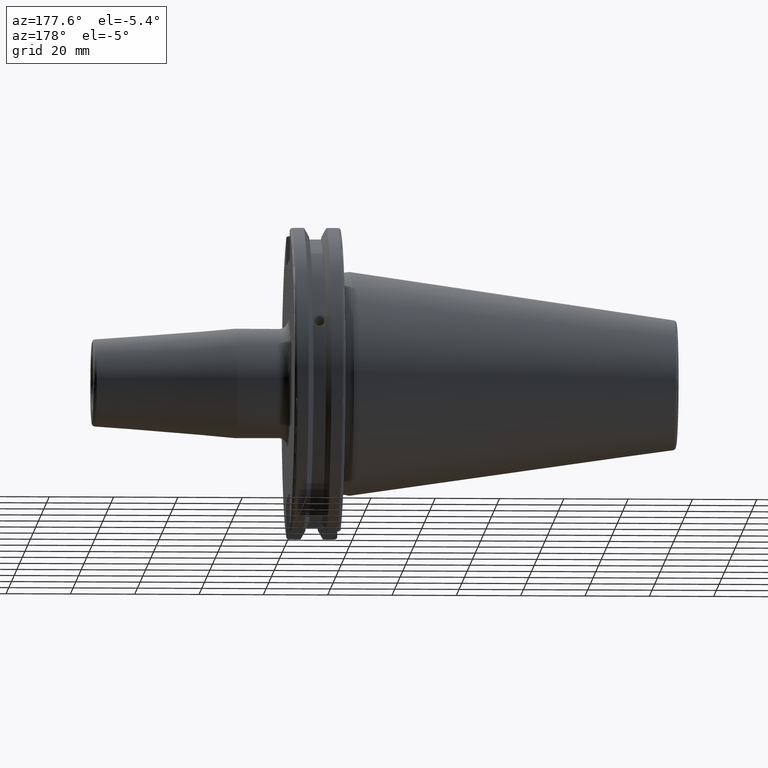
[diagram: clean part render]
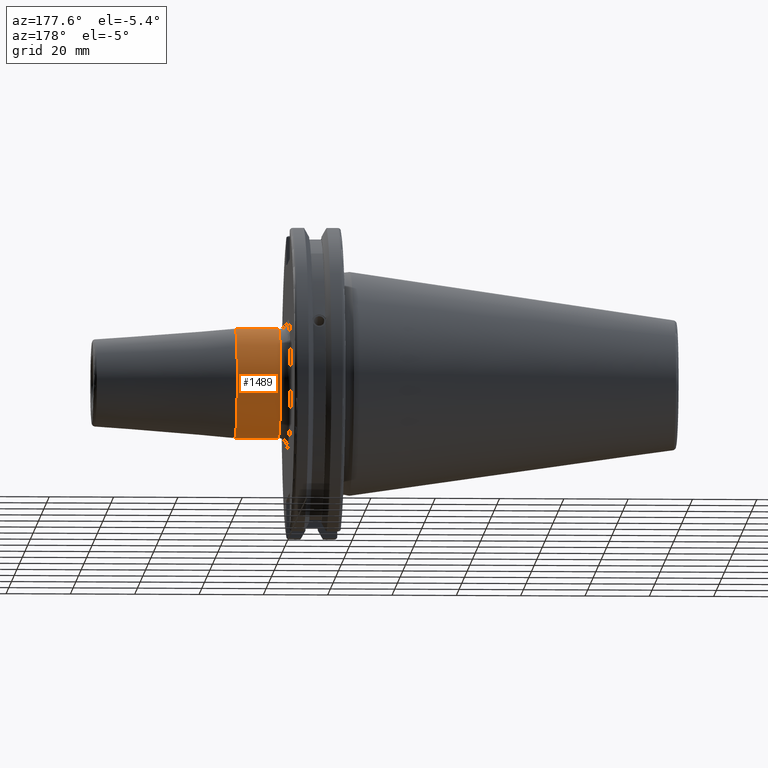
[diagram: same view with one face highlighted and labeled with its STEP entity id]
A machine part, auxiliary view. The second image highlights one B-rep face of the part: STEP entity #1489.
In plain terms, the highlighted cylindrical surface (bore or boss wall) has radius 17 mm, axis along (1, 0, 0).
Its self-contained STEP definition (entity closure, byte-faithful):
#85=LINE('',#2233,#179);
#179=VECTOR('',#1812,17.);
#272=CYLINDRICAL_SURFACE('',#1616,17.);
#368=FACE_OUTER_BOUND('',#459,.T.);
#459=EDGE_LOOP('',(#1047,#1048,#1049,#1050,#1051));
#569=CIRCLE('',#1610,17.);
#570=CIRCLE('',#1612,17.);
#573=CIRCLE('',#1615,17.);
#645=VERTEX_POINT('',#2221);
#646=VERTEX_POINT('',#2225);
#647=VERTEX_POINT('',#2226);
#803=EDGE_CURVE('',#645,#645,#569,.T.);
#804=EDGE_CURVE('',#646,#647,#570,.T.);
#807=EDGE_CURVE('',#647,#646,#573,.T.);
#808=EDGE_CURVE('',#645,#646,#85,.T.);
#1047=ORIENTED_EDGE('',*,*,#803,.F.);
#1048=ORIENTED_EDGE('',*,*,#808,.T.);
#1049=ORIENTED_EDGE('',*,*,#807,.F.);
#1050=ORIENTED_EDGE('',*,*,#804,.F.);
#1051=ORIENTED_EDGE('',*,*,#808,.F.);
#1489=ADVANCED_FACE('',(#368),#272,.T.);
#1610=AXIS2_PLACEMENT_3D('',#2223,#1798,#1799);
#1612=AXIS2_PLACEMENT_3D('',#2227,#1802,#1803);
#1615=AXIS2_PLACEMENT_3D('',#2231,#1808,#1809);
#1616=AXIS2_PLACEMENT_3D('',#2232,#1810,#1811);
#1798=DIRECTION('center_axis',(1.,0.,0.));
#1799=DIRECTION('ref_axis',(0.,0.,-1.));
#1802=DIRECTION('center_axis',(-1.,0.,0.));
#1803=DIRECTION('ref_axis',(0.,-1.,-1.22464679914735E-16));
#1808=DIRECTION('center_axis',(-1.,0.,0.));
#1809=DIRECTION('ref_axis',(0.,-1.,-1.22464679914735E-16));
#1810=DIRECTION('center_axis',(1.,0.,0.));
#1811=DIRECTION('ref_axis',(0.,1.,0.));
#1812=DIRECTION('',(-1.,0.,0.));
#2221=CARTESIAN_POINT('',(35.5282834233885,-17.,-2.0818995585505E-15));
#2223=CARTESIAN_POINT('Origin',(35.5282834233885,0.,0.));
#2225=CARTESIAN_POINT('',(22.05,-17.,-2.0818995585505E-15));
#2226=CARTESIAN_POINT('',(22.05,-2.0818995585505E-15,-17.));
#2227=CARTESIAN_POINT('Origin',(22.05,0.,0.));
#2231=CARTESIAN_POINT('Origin',(22.05,0.,0.));
#2232=CARTESIAN_POINT('Origin',(27.2891417116943,0.,0.));
#2233=CARTESIAN_POINT('',(27.2891417116943,-17.,-2.0818995585505E-15));